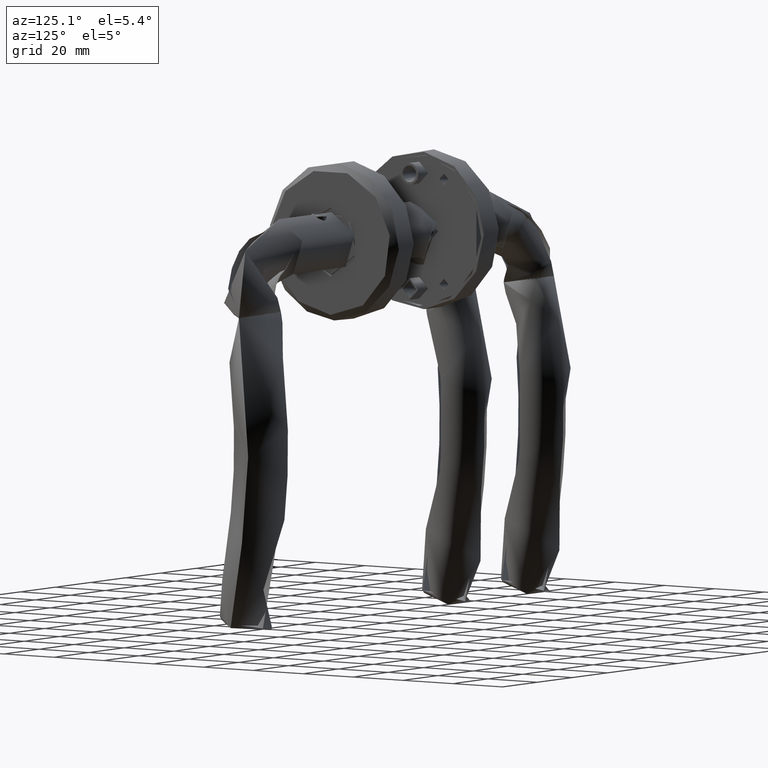
[diagram: clean part render]
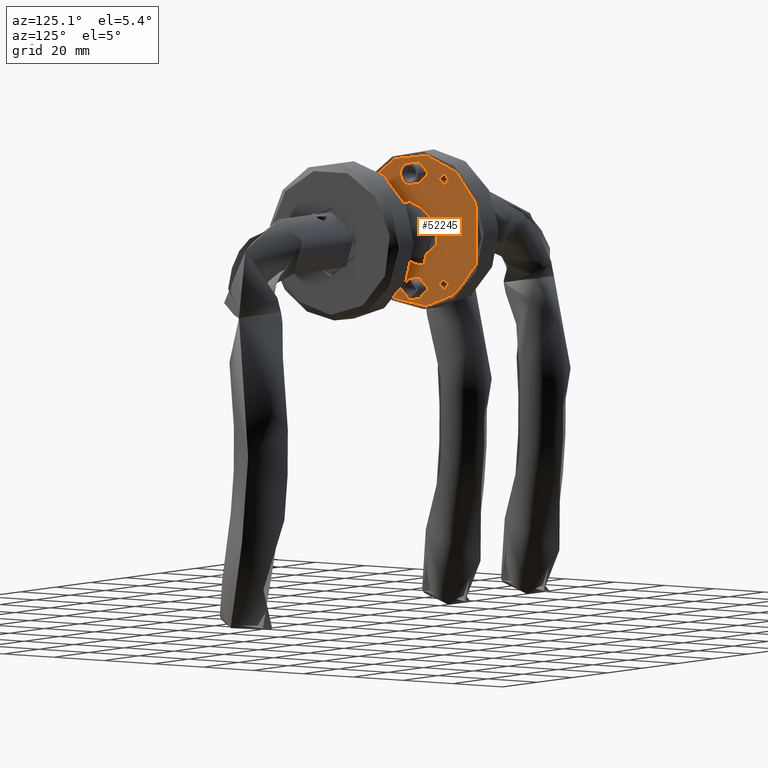
[diagram: same view with one face highlighted and labeled with its STEP entity id]
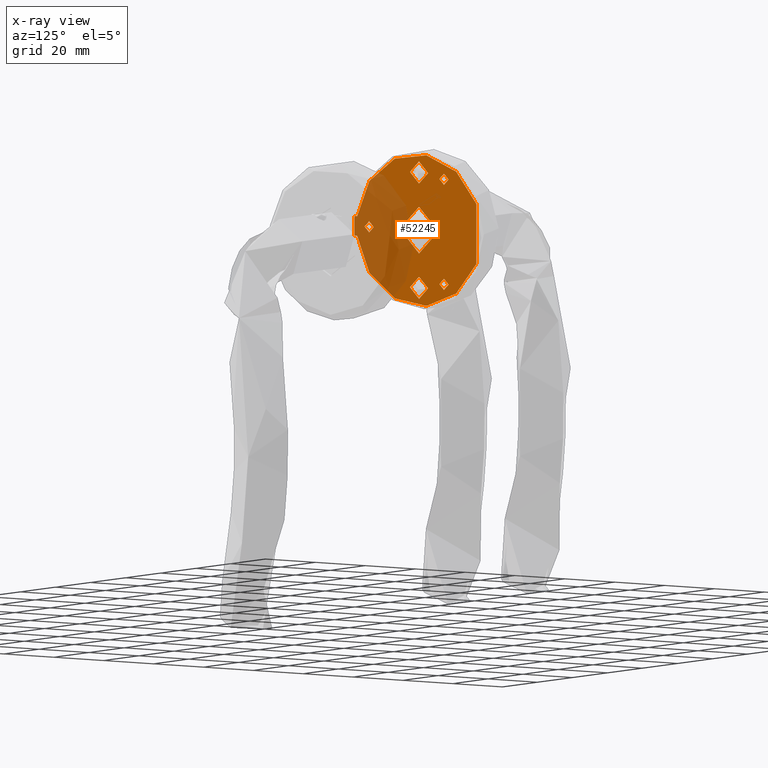
[diagram: x-ray of the same camera — body ghosted, the highlighted face saturated]
A machine part, auxiliary view. The second image highlights one B-rep face of the part: STEP entity #52245.
The next image is the same camera in x-ray: the body ghosted, the highlighted face saturated — about 36% of this face is hidden behind the body in this view.
In plain terms, the highlighted planar face has unit normal (-1, -0, 0).
Its self-contained STEP definition (entity closure, byte-faithful):
#414 = FACE_BOUND ( 'NONE', #23314, .T. ) ;
#444 = CARTESIAN_POINT ( 'NONE',  ( 0.0000000000000000000, -20.00000000000000000, 0.0000000000000000000 ) ) ;
#685 = ORIENTED_EDGE ( 'NONE', *, *, #2385, .F. ) ;
#1204 = AXIS2_PLACEMENT_3D ( 'NONE', #26085, #55396, #38067 ) ;
#1913 = ORIENTED_EDGE ( 'NONE', *, *, #11894, .F. ) ;
#2204 = FACE_BOUND ( 'NONE', #42311, .T. ) ;
#2385 = EDGE_CURVE ( 'NONE', #9240, #9240, #37169, .T. ) ;
#2733 = CARTESIAN_POINT ( 'NONE',  ( 0.0000000000000000000, 0.0000000000000000000, 0.0000000000000000000 ) ) ;
#3278 = VERTEX_POINT ( 'NONE', #52232 ) ;
#4042 = CARTESIAN_POINT ( 'NONE',  ( 9.591663046625443600, 23.00000000000000000, 0.0000000000000000000 ) ) ;
#4045 = CARTESIAN_POINT ( 'NONE',  ( 0.0000000000000000000, 0.0000000000000000000, 0.0000000000000000000 ) ) ;
#4876 = EDGE_CURVE ( 'NONE', #9154, #9154, #58223, .T. ) ;
#5229 = EDGE_CURVE ( 'NONE', #56828, #56828, #74483, .T. ) ;
#5568 = DIRECTION ( 'NONE',  ( 0.0000000000000000000, 0.0000000000000000000, -1.000000000000000000 ) ) ;
#6069 = DIRECTION ( 'NONE',  ( -1.000000000000000000, 0.0000000000000000000, 0.0000000000000000000 ) ) ;
#6852 = ORIENTED_EDGE ( 'NONE', *, *, #5229, .F. ) ;
#7232 = CARTESIAN_POINT ( 'NONE',  ( 9.991315673568168500, 22.91666666666666400, 0.0000000000000000000 ) ) ;
#9154 = VERTEX_POINT ( 'NONE', #47348 ) ;
#9240 = VERTEX_POINT ( 'NONE', #70927 ) ;
#9654 = EDGE_LOOP ( 'NONE', ( #685 ) ) ;
#11045 = DIRECTION ( 'NONE',  ( -1.000000000000000000, 0.0000000000000000000, 0.0000000000000000000 ) ) ;
#11200 = DIRECTION ( 'NONE',  ( -4.301427570026763200E-016, -1.000000000000000000, 0.0000000000000000000 ) ) ;
#11894 = EDGE_CURVE ( 'NONE', #62721, #62104, #16701, .T. ) ;
#12917 = EDGE_LOOP ( 'NONE', ( #16073 ) ) ;
#13489 = CARTESIAN_POINT ( 'NONE',  ( -1.850000000000001000, -20.00000000000000000, 0.0000000000000000000 ) ) ;
#14643 = VERTEX_POINT ( 'NONE', #53616 ) ;
#14704 = CARTESIAN_POINT ( 'NONE',  ( 15.35000000000000000, 0.0000000000000000000, 0.0000000000000000000 ) ) ;
#14737 = EDGE_CURVE ( 'NONE', #42741, #63760, #29165, .T. ) ;
#14750 = CIRCLE ( 'NONE', #68015, 3.650000000000000400 ) ;
#15614 = CARTESIAN_POINT ( 'NONE',  ( -9.591663046625443600, 22.00000000000000000, 0.0000000000000000000 ) ) ;
#16073 = ORIENTED_EDGE ( 'NONE', *, *, #44666, .F. ) ;
#16701 = LINE ( 'NONE', #33431, #34612 ) ;
#17847 = DIRECTION ( 'NONE',  ( -1.000000000000000000, 0.0000000000000000000, 0.0000000000000000000 ) ) ;
#18372 = DIRECTION ( 'NONE',  ( 0.0000000000000000000, 0.0000000000000000000, 1.000000000000000000 ) ) ;
#19992 = ORIENTED_EDGE ( 'NONE', *, *, #25156, .F. ) ;
#20074 = DIRECTION ( 'NONE',  ( 0.0000000000000000000, 0.0000000000000000000, -1.000000000000000000 ) ) ;
#22652 = VERTEX_POINT ( 'NONE', #13489 ) ;
#23095 = ORIENTED_EDGE ( 'NONE', *, *, #23811, .T. ) ;
#23097 = CIRCLE ( 'NONE', #27040, 1.850000000000001000 ) ;
#23226 = AXIS2_PLACEMENT_3D ( 'NONE', #15614, #74093, #55744 ) ;
#23314 = EDGE_LOOP ( 'NONE', ( #57889 ) ) ;
#23811 = EDGE_CURVE ( 'NONE', #25164, #62104, #63527, .T. ) ;
#23861 = DIRECTION ( 'NONE',  ( 0.0000000000000000000, 0.0000000000000000000, -1.000000000000000000 ) ) ;
#24412 = AXIS2_PLACEMENT_3D ( 'NONE', #67701, #44862, #27839 ) ;
#24894 = EDGE_LOOP ( 'NONE', ( #6852 ) ) ;
#25156 = EDGE_CURVE ( 'NONE', #22652, #22652, #23097, .T. ) ;
#25164 = VERTEX_POINT ( 'NONE', #52366 ) ;
#25431 = AXIS2_PLACEMENT_3D ( 'NONE', #52619, #68944, #58133 ) ;
#26085 = CARTESIAN_POINT ( 'NONE',  ( 0.0000000000000000000, 0.0000000000000000000, 0.0000000000000000000 ) ) ;
#26426 = VECTOR ( 'NONE', #62373, 1000.000000000000000 ) ;
#26624 = EDGE_CURVE ( 'NONE', #25164, #63760, #44492, .T. ) ;
#27040 = AXIS2_PLACEMENT_3D ( 'NONE', #444, #40335, #29548 ) ;
#27155 = VERTEX_POINT ( 'NONE', #47656 ) ;
#27313 = EDGE_CURVE ( 'NONE', #14643, #14643, #36377, .T. ) ;
#27384 = DIRECTION ( 'NONE',  ( 0.0000000000000000000, 0.0000000000000000000, 1.000000000000000000 ) ) ;
#27839 = DIRECTION ( 'NONE',  ( 1.000000000000000000, -3.469446951953611000E-015, 0.0000000000000000000 ) ) ;
#28921 = CARTESIAN_POINT ( 'NONE',  ( -17.32050807568879600, 9.999999999999955600, 0.0000000000000000000 ) ) ;
#29032 = AXIS2_PLACEMENT_3D ( 'NONE', #2733, #20074, #31563 ) ;
#29165 = LINE ( 'NONE', #56598, #26426 ) ;
#29415 = DIRECTION ( 'NONE',  ( 1.000000000000000000, 0.0000000000000000000, -0.0000000000000000000 ) ) ;
#29548 = DIRECTION ( 'NONE',  ( -1.000000000000000000, 0.0000000000000000000, 0.0000000000000000000 ) ) ;
#30357 = CARTESIAN_POINT ( 'NONE',  ( 19.00000000000000000, 0.0000000000000000000, 0.0000000000000000000 ) ) ;
#30931 = FACE_OUTER_BOUND ( 'NONE', #69157, .T. ) ;
#31563 = DIRECTION ( 'NONE',  ( -1.000000000000000000, 0.0000000000000000000, 0.0000000000000000000 ) ) ;
#31769 = FACE_BOUND ( 'NONE', #24894, .T. ) ;
#33431 = CARTESIAN_POINT ( 'NONE',  ( 9.797958971132716900, 23.00000000000000000, 0.0000000000000000000 ) ) ;
#34410 = DIRECTION ( 'NONE',  ( 0.0000000000000000000, 0.0000000000000000000, -1.000000000000000000 ) ) ;
#34612 = VECTOR ( 'NONE', #50763, 1000.000000000000000 ) ;
#34798 = ORIENTED_EDGE ( 'NONE', *, *, #38166, .T. ) ;
#34928 = PLANE ( 'NONE',  #49876 ) ;
#36377 = CIRCLE ( 'NONE', #29032, 7.700000000000000200 ) ;
#37169 = CIRCLE ( 'NONE', #49715, 1.850000000000002800 ) ;
#38067 = DIRECTION ( 'NONE',  ( 1.000000000000000000, 0.0000000000000000000, 0.0000000000000000000 ) ) ;
#38166 = EDGE_CURVE ( 'NONE', #3278, #27155, #42705, .T. ) ;
#38246 = VECTOR ( 'NONE', #11200, 1000.000000000000000 ) ;
#38625 = EDGE_CURVE ( 'NONE', #62721, #39007, #69669, .T. ) ;
#38976 = FACE_BOUND ( 'NONE', #45133, .T. ) ;
#39007 = VERTEX_POINT ( 'NONE', #7232 ) ;
#39306 = CARTESIAN_POINT ( 'NONE',  ( 17.32050807568879900, 9.999999999999952000, 0.0000000000000000000 ) ) ;
#39674 = ORIENTED_EDGE ( 'NONE', *, *, #38625, .T. ) ;
#39929 = CARTESIAN_POINT ( 'NONE',  ( -19.00000000000000000, 4.653657836759941900E-015, 0.0000000000000000000 ) ) ;
#39947 = DIRECTION ( 'NONE',  ( -1.000000000000000000, 0.0000000000000000000, 0.0000000000000000000 ) ) ;
#40335 = DIRECTION ( 'NONE',  ( 0.0000000000000000000, 0.0000000000000000000, -1.000000000000000000 ) ) ;
#42311 = EDGE_LOOP ( 'NONE', ( #19992 ) ) ;
#42425 = VERTEX_POINT ( 'NONE', #14704 ) ;
#42705 = LINE ( 'NONE', #45029, #38246 ) ;
#42741 = VERTEX_POINT ( 'NONE', #64409 ) ;
#44165 = DIRECTION ( 'NONE',  ( 1.000000000000000000, 0.0000000000000000000, 0.0000000000000000000 ) ) ;
#44492 = CIRCLE ( 'NONE', #61192, 25.00000000000000000 ) ;
#44666 = EDGE_CURVE ( 'NONE', #42425, #42425, #14750, .T. ) ;
#44862 = DIRECTION ( 'NONE',  ( -0.0000000000000000000, -0.0000000000000000000, -1.000000000000000000 ) ) ;
#44934 = EDGE_CURVE ( 'NONE', #3278, #39007, #47071, .T. ) ;
#45029 = CARTESIAN_POINT ( 'NONE',  ( 3.250000000000011100, -1.397963960258702800E-015, 0.0000000000000000000 ) ) ;
#45133 = EDGE_LOOP ( 'NONE', ( #74188 ) ) ;
#46196 = FACE_BOUND ( 'NONE', #12917, .T. ) ;
#47071 = CIRCLE ( 'NONE', #1204, 25.00000000000000000 ) ;
#47348 = CARTESIAN_POINT ( 'NONE',  ( -22.64999999999999900, 4.653657836759941900E-015, 0.0000000000000000000 ) ) ;
#47592 = CARTESIAN_POINT ( 'NONE',  ( -19.17050807568879400, 9.999999999999955600, 0.0000000000000000000 ) ) ;
#47656 = CARTESIAN_POINT ( 'NONE',  ( 3.250000000000000000, -25.79607528287976600, 0.0000000000000000000 ) ) ;
#49715 = AXIS2_PLACEMENT_3D ( 'NONE', #39306, #56809, #11045 ) ;
#49876 = AXIS2_PLACEMENT_3D ( 'NONE', #69788, #18372, #29415 ) ;
#50763 = DIRECTION ( 'NONE',  ( -1.000000000000000000, 0.0000000000000000000, 0.0000000000000000000 ) ) ;
#52232 = CARTESIAN_POINT ( 'NONE',  ( 3.250000000000000400, -24.78784984624523700, 0.0000000000000000000 ) ) ;
#52245 = ADVANCED_FACE ( 'NONE', ( #2204, #46196, #38976, #31769, #64124, #414, #30931 ), #34928, .F. ) ;
#52366 = CARTESIAN_POINT ( 'NONE',  ( -9.991315673568168500, 22.91666666666666400, 0.0000000000000000000 ) ) ;
#52619 = CARTESIAN_POINT ( 'NONE',  ( 4.336808689942017700E-016, -2.168404344971008900E-016, 0.0000000000000000000 ) ) ;
#53295 = ORIENTED_EDGE ( 'NONE', *, *, #74292, .T. ) ;
#53616 = CARTESIAN_POINT ( 'NONE',  ( -7.700000000000000200, 0.0000000000000000000, 0.0000000000000000000 ) ) ;
#55396 = DIRECTION ( 'NONE',  ( 0.0000000000000000000, 0.0000000000000000000, 1.000000000000000000 ) ) ;
#55744 = DIRECTION ( 'NONE',  ( 1.000000000000000000, -3.469446951953611000E-015, 0.0000000000000000000 ) ) ;
#55778 = ORIENTED_EDGE ( 'NONE', *, *, #26624, .F. ) ;
#56598 = CARTESIAN_POINT ( 'NONE',  ( -3.249999999999966200, 4.193891880776051000E-015, 0.0000000000000000000 ) ) ;
#56809 = DIRECTION ( 'NONE',  ( 0.0000000000000000000, 0.0000000000000000000, -1.000000000000000000 ) ) ;
#56828 = VERTEX_POINT ( 'NONE', #47592 ) ;
#57889 = ORIENTED_EDGE ( 'NONE', *, *, #27313, .F. ) ;
#58133 = DIRECTION ( 'NONE',  ( -1.000000000000000000, 0.0000000000000000000, 0.0000000000000000000 ) ) ;
#58223 = CIRCLE ( 'NONE', #72388, 3.650000000000000400 ) ;
#60418 = CIRCLE ( 'NONE', #25431, 26.00000000000001100 ) ;
#61192 = AXIS2_PLACEMENT_3D ( 'NONE', #4045, #27384, #44165 ) ;
#61811 = AXIS2_PLACEMENT_3D ( 'NONE', #28921, #34410, #39947 ) ;
#62104 = VERTEX_POINT ( 'NONE', #70423 ) ;
#62373 = DIRECTION ( 'NONE',  ( 1.290428271008028800E-015, 1.000000000000000000, 0.0000000000000000000 ) ) ;
#62721 = VERTEX_POINT ( 'NONE', #4042 ) ;
#63527 = CIRCLE ( 'NONE', #23226, 1.000000000000000900 ) ;
#63760 = VERTEX_POINT ( 'NONE', #65377 ) ;
#64124 = FACE_BOUND ( 'NONE', #9654, .T. ) ;
#64409 = CARTESIAN_POINT ( 'NONE',  ( -3.250000000000000000, -25.79607528287976600, 0.0000000000000000000 ) ) ;
#65377 = CARTESIAN_POINT ( 'NONE',  ( -3.249999999999998700, -24.78784984624523700, 0.0000000000000000000 ) ) ;
#67701 = CARTESIAN_POINT ( 'NONE',  ( 9.591663046625443600, 22.00000000000000000, 0.0000000000000000000 ) ) ;
#68015 = AXIS2_PLACEMENT_3D ( 'NONE', #30357, #23861, #17847 ) ;
#68944 = DIRECTION ( 'NONE',  ( 0.0000000000000000000, 0.0000000000000000000, -1.000000000000000000 ) ) ;
#69157 = EDGE_LOOP ( 'NONE', ( #55778, #23095, #1913, #39674, #73829, #34798, #53295, #73850 ) ) ;
#69669 = CIRCLE ( 'NONE', #24412, 1.000000000000000900 ) ;
#69788 = CARTESIAN_POINT ( 'NONE',  ( 0.0000000000000000000, 0.0000000000000000000, 0.0000000000000000000 ) ) ;
#70423 = CARTESIAN_POINT ( 'NONE',  ( -9.591663046625434700, 23.00000000000000000, 0.0000000000000000000 ) ) ;
#70927 = CARTESIAN_POINT ( 'NONE',  ( 15.47050807568879800, 9.999999999999952000, 0.0000000000000000000 ) ) ;
#72388 = AXIS2_PLACEMENT_3D ( 'NONE', #39929, #5568, #6069 ) ;
#73829 = ORIENTED_EDGE ( 'NONE', *, *, #44934, .F. ) ;
#73850 = ORIENTED_EDGE ( 'NONE', *, *, #14737, .T. ) ;
#74093 = DIRECTION ( 'NONE',  ( -0.0000000000000000000, -0.0000000000000000000, -1.000000000000000000 ) ) ;
#74188 = ORIENTED_EDGE ( 'NONE', *, *, #4876, .F. ) ;
#74292 = EDGE_CURVE ( 'NONE', #27155, #42741, #60418, .T. ) ;
#74483 = CIRCLE ( 'NONE', #61811, 1.849999999999997400 ) ;